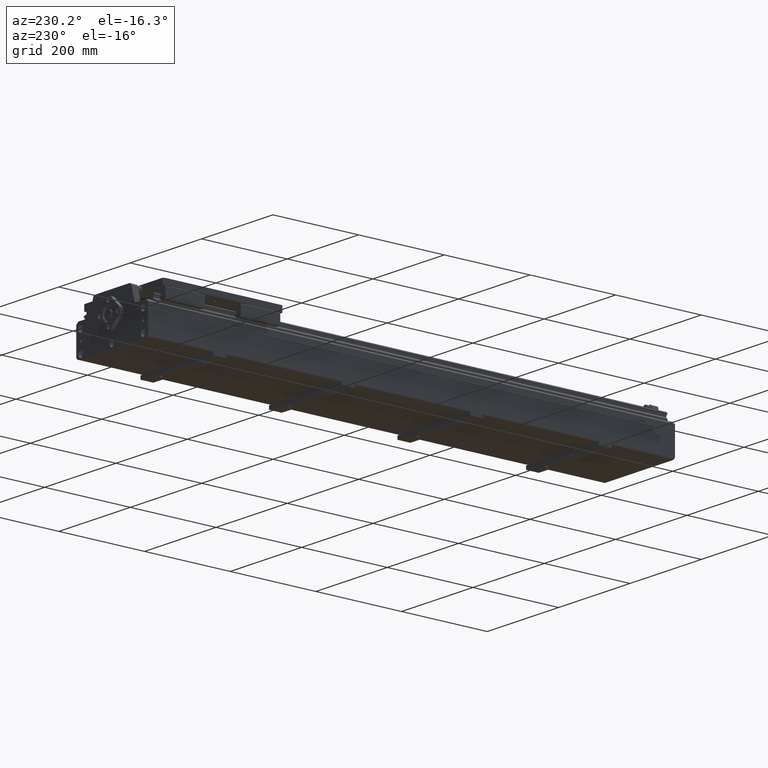
[diagram: clean part render]
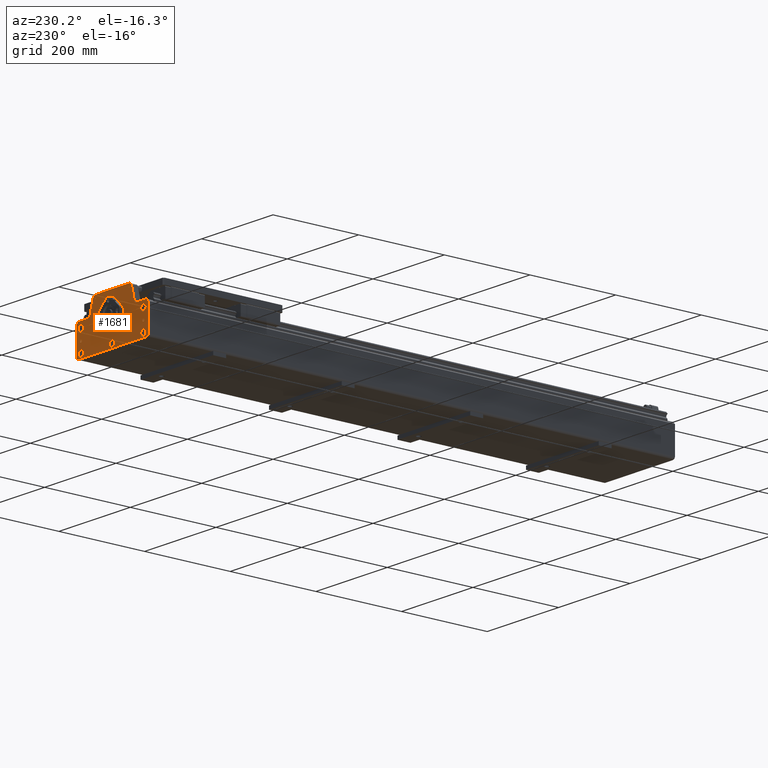
[diagram: same view with one face highlighted and labeled with its STEP entity id]
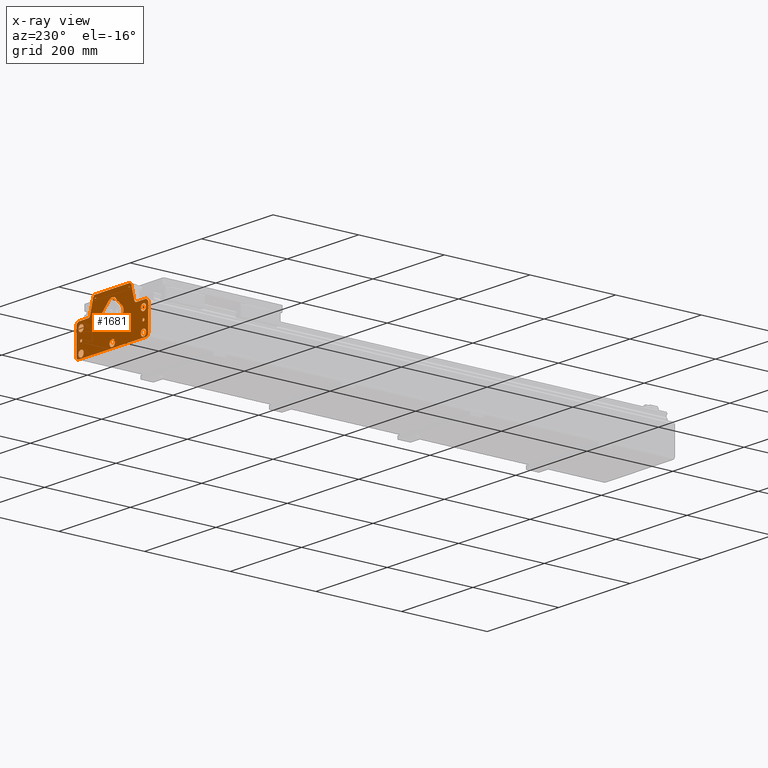
[diagram: x-ray of the same camera — body ghosted, the highlighted face saturated]
A machine part, auxiliary view. The second image highlights one B-rep face of the part: STEP entity #1681.
The next image is the same camera in x-ray: the body ghosted, the highlighted face saturated — about 0% of this face is hidden behind the body in this view.
In plain terms, the highlighted planar face has unit normal (0, 1, 0).
Its self-contained STEP definition (entity closure, byte-faithful):
#780=CARTESIAN_POINT('',(106.052560075463080,1015.0,41.677887302836467));
#781=VERTEX_POINT('',#780);
#789=CARTESIAN_POINT('',(82.177887302836496,1015.0,65.552560075463077));
#790=VERTEX_POINT('',#789);
#791=CARTESIAN_POINT('',(82.177887302836496,1015.0,65.552560075463077));
#792=DIRECTION('',(0.707106781186547,0.0,-0.707106781186548));
#793=VECTOR('',#792,33.763886032268196);
#794=LINE('',#791,#793);
#795=EDGE_CURVE('',#790,#781,#794,.T.);
#839=CARTESIAN_POINT('',(118.947439924536980,1015.0,41.677887302836467));
#840=VERTEX_POINT('',#839);
#848=CARTESIAN_POINT('',(112.500000000000060,1015.0,72.000000000000028));
#849=DIRECTION('',(0.0,-1.0,0.0));
#850=DIRECTION('',(0.0,0.0,1.0));
#851=AXIS2_PLACEMENT_3D('',#848,#849,#850);
#852=CIRCLE('',#851,30.999999999999957);
#853=EDGE_CURVE('',#781,#840,#852,.T.);
#939=CARTESIAN_POINT('',(142.822112697163590,1015.0,65.552560075463035));
#940=VERTEX_POINT('',#939);
#948=CARTESIAN_POINT('',(118.947439924536980,1015.0,41.677887302836467));
#949=DIRECTION('',(0.707106781186548,0.0,0.707106781186547));
#950=VECTOR('',#949,33.763886032268189);
#951=LINE('',#948,#950);
#952=EDGE_CURVE('',#840,#940,#951,.T.);
#975=CARTESIAN_POINT('',(142.822112697163620,1015.0,78.447439924536965));
#976=VERTEX_POINT('',#975);
#984=CARTESIAN_POINT('',(112.500000000000060,1015.0,72.000000000000028));
#985=DIRECTION('',(0.0,-1.0,0.0));
#986=DIRECTION('',(0.0,0.0,1.0));
#987=AXIS2_PLACEMENT_3D('',#984,#985,#986);
#988=CIRCLE('',#987,30.999999999999957);
#989=EDGE_CURVE('',#940,#976,#988,.T.);
#1075=CARTESIAN_POINT('',(118.947439924537040,1015.0,102.322112697163590));
#1076=VERTEX_POINT('',#1075);
#1084=CARTESIAN_POINT('',(142.822112697163620,1015.0,78.447439924536965));
#1085=DIRECTION('',(-0.707106781186547,0.0,0.707106781186548));
#1086=VECTOR('',#1085,33.763886032268211);
#1087=LINE('',#1084,#1086);
#1088=EDGE_CURVE('',#976,#1076,#1087,.T.);
#1111=CARTESIAN_POINT('',(106.052560075463130,1015.0,102.322112697163590));
#1112=VERTEX_POINT('',#1111);
#1120=CARTESIAN_POINT('',(112.500000000000060,1015.0,72.000000000000028));
#1121=DIRECTION('',(0.0,-1.0,0.0));
#1122=DIRECTION('',(0.0,0.0,1.0));
#1123=AXIS2_PLACEMENT_3D('',#1120,#1121,#1122);
#1124=CIRCLE('',#1123,30.999999999999957);
#1125=EDGE_CURVE('',#1076,#1112,#1124,.T.);
#1211=CARTESIAN_POINT('',(82.177887302836510,1015.0,78.447439924537022));
#1212=VERTEX_POINT('',#1211);
#1220=CARTESIAN_POINT('',(106.052560075463130,1015.0,102.322112697163590));
#1221=DIRECTION('',(-0.707106781186548,0.0,-0.707106781186547));
#1222=VECTOR('',#1221,33.763886032268196);
#1223=LINE('',#1220,#1222);
#1224=EDGE_CURVE('',#1112,#1212,#1223,.T.);
#1359=CARTESIAN_POINT('',(112.500000000000060,1015.0,72.000000000000028));
#1360=DIRECTION('',(0.0,-1.0,0.0));
#1361=DIRECTION('',(0.0,0.0,1.0));
#1362=AXIS2_PLACEMENT_3D('',#1359,#1360,#1361);
#1363=CIRCLE('',#1362,30.999999999999957);
#1364=EDGE_CURVE('',#1212,#790,#1363,.T.);
#1431=CARTESIAN_POINT('',(112.500000000000090,1015.0,78.099999999999994));
#1432=DIRECTION('',(0.0,1.0,0.0));
#1433=DIRECTION('',(-1.0,0.0,0.0));
#1434=AXIS2_PLACEMENT_3D('',#1431,#1432,#1433);
#1435=PLANE('',#1434);
#1436=CARTESIAN_POINT('',(213.250000000000110,1015.0,74.0));
#1437=VERTEX_POINT('',#1436);
#1438=CARTESIAN_POINT('',(208.050000000000100,1015.0,79.199999999999989));
#1439=VERTEX_POINT('',#1438);
#1440=CARTESIAN_POINT('',(213.250000000000110,1015.0,74.0));
#1441=DIRECTION('',(-0.707106781186549,0.0,0.707106781186546));
#1442=VECTOR('',#1441,7.353910524340098);
#1443=LINE('',#1440,#1442);
#1444=EDGE_CURVE('',#1437,#1439,#1443,.T.);
#1445=ORIENTED_EDGE('',*,*,#1444,.F.);
#1446=CARTESIAN_POINT('',(213.250000000000110,1015.0,13.999999999999982));
#1447=VERTEX_POINT('',#1446);
#1448=CARTESIAN_POINT('',(213.250000000000110,1015.0,13.999999999999982));
#1449=DIRECTION('',(0.0,0.0,1.0));
#1450=VECTOR('',#1449,60.000000000000014);
#1451=LINE('',#1448,#1450);
#1452=EDGE_CURVE('',#1447,#1437,#1451,.T.);
#1453=ORIENTED_EDGE('',*,*,#1452,.F.);
#1454=CARTESIAN_POINT('',(207.250000000000090,1015.0,7.999999999999977));
#1455=VERTEX_POINT('',#1454);
#1456=CARTESIAN_POINT('',(207.250000000000090,1015.0,13.999999999999979));
#1457=DIRECTION('',(0.0,-1.000000000000000,0.0));
#1458=DIRECTION('',(0.707106781186548,0.0,-0.707106781186547));
#1459=AXIS2_PLACEMENT_3D('',#1456,#1457,#1458);
#1460=CIRCLE('',#1459,6.000000000000002);
#1461=EDGE_CURVE('',#1455,#1447,#1460,.T.);
#1462=ORIENTED_EDGE('',*,*,#1461,.F.);
#1463=CARTESIAN_POINT('',(17.750000000000092,1015.0,8.000000000000036));
#1464=VERTEX_POINT('',#1463);
#1465=CARTESIAN_POINT('',(17.750000000000092,1015.0,8.000000000000036));
#1466=DIRECTION('',(1.0,0.0,0.0));
#1467=VECTOR('',#1466,189.500000000000000);
#1468=LINE('',#1465,#1467);
#1469=EDGE_CURVE('',#1464,#1455,#1468,.T.);
#1470=ORIENTED_EDGE('',*,*,#1469,.F.);
#1471=CARTESIAN_POINT('',(11.750000000000043,1015.0,14.000000000000036));
#1472=VERTEX_POINT('',#1471);
#1473=CARTESIAN_POINT('',(17.750000000000092,1015.0,14.000000000000036));
#1474=DIRECTION('',(0.0,-1.0,0.0));
#1475=DIRECTION('',(-0.707106781186549,0.0,-0.707106781186546));
#1476=AXIS2_PLACEMENT_3D('',#1473,#1474,#1475);
#1477=CIRCLE('',#1476,6.000000000000003);
#1478=EDGE_CURVE('',#1472,#1464,#1477,.T.);
#1479=ORIENTED_EDGE('',*,*,#1478,.F.);
#1480=CARTESIAN_POINT('',(11.750000000000078,1015.0,74.000000000000128));
#1481=VERTEX_POINT('',#1480);
#1482=CARTESIAN_POINT('',(11.750000000000078,1015.0,74.000000000000128));
#1483=DIRECTION('',(0.0,0.0,-1.0));
#1484=VECTOR('',#1483,60.000000000000092);
#1485=LINE('',#1482,#1484);
#1486=EDGE_CURVE('',#1481,#1472,#1485,.T.);
#1487=ORIENTED_EDGE('',*,*,#1486,.F.);
#1488=CARTESIAN_POINT('',(16.950000000000145,1015.0,79.200000000000230));
#1489=VERTEX_POINT('',#1488);
#1490=CARTESIAN_POINT('',(16.950000000000145,1015.0,79.200000000000230));
#1491=DIRECTION('',(-0.707106781186545,0.0,-0.707106781186550));
#1492=VECTOR('',#1491,7.353910524340214);
#1493=LINE('',#1490,#1492);
#1494=EDGE_CURVE('',#1489,#1481,#1493,.T.);
#1495=ORIENTED_EDGE('',*,*,#1494,.F.);
#1496=CARTESIAN_POINT('',(44.731660213367697,1015.0,79.200000000000060));
#1497=VERTEX_POINT('',#1496);
#1498=CARTESIAN_POINT('',(44.731660213367697,1015.0,79.200000000000060));
#1499=DIRECTION('',(-1.0,0.0,0.0));
#1500=VECTOR('',#1499,27.781660213367552);
#1501=LINE('',#1498,#1500);
#1502=EDGE_CURVE('',#1497,#1489,#1501,.T.);
#1503=ORIENTED_EDGE('',*,*,#1502,.F.);
#1504=CARTESIAN_POINT('',(50.527215171102107,1015.0,83.647085729384955));
#1505=VERTEX_POINT('',#1504);
#1506=CARTESIAN_POINT('',(44.731660213367697,1015.0,85.200000000000074));
#1507=DIRECTION('',(0.0,1.000000000000000,0.0));
#1508=DIRECTION('',(0.608761429008720,0.0,-0.793353340291235));
#1509=AXIS2_PLACEMENT_3D('',#1506,#1507,#1508);
#1510=CIRCLE('',#1509,6.000000000000002);
#1511=EDGE_CURVE('',#1505,#1497,#1510,.T.);
#1512=ORIENTED_EDGE('',*,*,#1511,.F.);
#1513=CARTESIAN_POINT('',(58.808406970139458,1015.0,114.552914270615130));
#1514=VERTEX_POINT('',#1513);
#1515=CARTESIAN_POINT('',(50.527215171102107,1015.0,83.647085729384955));
#1516=DIRECTION('',(0.258819045102520,0.0,0.965925826289068));
#1517=VECTOR('',#1516,31.996068124573704);
#1518=LINE('',#1515,#1517);
#1519=EDGE_CURVE('',#1505,#1514,#1518,.T.);
#1520=ORIENTED_EDGE('',*,*,#1519,.T.);
#1521=CARTESIAN_POINT('',(64.603961927873883,1015.0,119.000000000000030));
#1522=VERTEX_POINT('',#1521);
#1523=CARTESIAN_POINT('',(64.603961927873883,1015.0,113.000000000000030));
#1524=DIRECTION('',(0.0,-1.000000000000000,0.0));
#1525=DIRECTION('',(-0.608761429008721,0.0,0.793353340291235));
#1526=AXIS2_PLACEMENT_3D('',#1523,#1524,#1525);
#1527=CIRCLE('',#1526,6.000000000000002);
#1528=EDGE_CURVE('',#1522,#1514,#1527,.T.);
#1529=ORIENTED_EDGE('',*,*,#1528,.F.);
#1530=CARTESIAN_POINT('',(160.396038072126370,1015.0,118.999999999999990));
#1531=VERTEX_POINT('',#1530);
#1532=CARTESIAN_POINT('',(64.603961927873883,1015.0,119.000000000000030));
#1533=DIRECTION('',(1.0,0.0,0.0));
#1534=VECTOR('',#1533,95.792076144252491);
#1535=LINE('',#1532,#1534);
#1536=EDGE_CURVE('',#1522,#1531,#1535,.T.);
#1537=ORIENTED_EDGE('',*,*,#1536,.T.);
#1538=CARTESIAN_POINT('',(166.191593029860770,1015.0,114.552914270615090));
#1539=VERTEX_POINT('',#1538);
#1540=CARTESIAN_POINT('',(160.396038072126370,1015.0,112.999999999999970));
#1541=DIRECTION('',(0.0,-1.000000000000000,0.0));
#1542=DIRECTION('',(0.608761429008720,0.0,0.793353340291236));
#1543=AXIS2_PLACEMENT_3D('',#1540,#1541,#1542);
#1544=CIRCLE('',#1543,6.000000000000002);
#1545=EDGE_CURVE('',#1539,#1531,#1544,.T.);
#1546=ORIENTED_EDGE('',*,*,#1545,.F.);
#1547=CARTESIAN_POINT('',(174.472784828898140,1015.0,83.647085729384827));
#1548=VERTEX_POINT('',#1547);
#1549=CARTESIAN_POINT('',(166.191593029860770,1015.0,114.552914270615090));
#1550=DIRECTION('',(0.258819045102520,0.0,-0.965925826289068));
#1551=VECTOR('',#1550,31.996068124573792);
#1552=LINE('',#1549,#1551);
#1553=EDGE_CURVE('',#1539,#1548,#1552,.T.);
#1554=ORIENTED_EDGE('',*,*,#1553,.T.);
#1555=CARTESIAN_POINT('',(180.268339786632570,1015.0,79.199999999999946));
#1556=VERTEX_POINT('',#1555);
#1557=CARTESIAN_POINT('',(180.268339786632570,1015.0,85.199999999999960));
#1558=DIRECTION('',(0.0,1.000000000000000,0.0));
#1559=DIRECTION('',(-0.608761429008721,0.0,-0.793353340291235));
#1560=AXIS2_PLACEMENT_3D('',#1557,#1558,#1559);
#1561=CIRCLE('',#1560,6.000000000000002);
#1562=EDGE_CURVE('',#1556,#1548,#1561,.T.);
#1563=ORIENTED_EDGE('',*,*,#1562,.F.);
#1564=CARTESIAN_POINT('',(208.050000000000100,1015.0,79.199999999999989));
#1565=DIRECTION('',(-1.0,0.0,0.0));
#1566=VECTOR('',#1565,27.781660213367530);
#1567=LINE('',#1564,#1566);
#1568=EDGE_CURVE('',#1439,#1556,#1567,.T.);
#1569=ORIENTED_EDGE('',*,*,#1568,.F.);
#1570=EDGE_LOOP('',(#1445,#1453,#1462,#1470,#1479,#1487,#1495,#1503,#1512,#1520,#1529,#1537,#1546,#1554,#1563,#1569));
#1571=FACE_OUTER_BOUND('',#1570,.T.);
#1572=ORIENTED_EDGE('',*,*,#795,.T.);
#1573=ORIENTED_EDGE('',*,*,#853,.T.);
#1574=ORIENTED_EDGE('',*,*,#952,.T.);
#1575=ORIENTED_EDGE('',*,*,#989,.T.);
#1576=ORIENTED_EDGE('',*,*,#1088,.T.);
#1577=ORIENTED_EDGE('',*,*,#1125,.T.);
#1578=ORIENTED_EDGE('',*,*,#1224,.T.);
#1579=ORIENTED_EDGE('',*,*,#1364,.T.);
#1580=EDGE_LOOP('',(#1572,#1573,#1574,#1575,#1576,#1577,#1578,#1579));
#1581=FACE_BOUND('',#1580,.T.);
#1582=CARTESIAN_POINT('',(63.770500000000148,1015.0,112.000000000000030));
#1583=VERTEX_POINT('',#1582);
#1584=CARTESIAN_POINT('',(65.000000000000142,1015.0,112.000000000000030));
#1585=DIRECTION('',(0.0,-1.0,0.0));
#1586=DIRECTION('',(-1.0,0.0,0.0));
#1587=AXIS2_PLACEMENT_3D('',#1584,#1585,#1586);
#1588=CIRCLE('',#1587,1.229500000000000);
#1589=EDGE_CURVE('',#1583,#1583,#1588,.T.);
#1590=ORIENTED_EDGE('',*,*,#1589,.T.);
#1591=EDGE_LOOP('',(#1590));
#1592=FACE_BOUND('',#1591,.T.);
#1593=CARTESIAN_POINT('',(158.770500000000110,1015.0,112.000000000000030));
#1594=VERTEX_POINT('',#1593);
#1595=CARTESIAN_POINT('',(160.000000000000110,1015.0,112.000000000000030));
#1596=DIRECTION('',(0.0,-1.0,0.0));
#1597=DIRECTION('',(-1.0,0.0,0.0));
#1598=AXIS2_PLACEMENT_3D('',#1595,#1596,#1597);
#1599=CIRCLE('',#1598,1.229500000000000);
#1600=EDGE_CURVE('',#1594,#1594,#1599,.T.);
#1601=ORIENTED_EDGE('',*,*,#1600,.T.);
#1602=EDGE_LOOP('',(#1601));
#1603=FACE_BOUND('',#1602,.T.);
#1604=CARTESIAN_POINT('',(22.000000000000028,1015.0,41.449999999999996));
#1605=VERTEX_POINT('',#1604);
#1606=CARTESIAN_POINT('',(25.000000000000036,1015.0,41.449999999999996));
#1607=DIRECTION('',(0.0,-1.0,0.0));
#1608=DIRECTION('',(-1.0,0.0,0.0));
#1609=AXIS2_PLACEMENT_3D('',#1606,#1607,#1608);
#1610=CIRCLE('',#1609,3.000000000000000);
#1611=EDGE_CURVE('',#1605,#1605,#1610,.T.);
#1612=ORIENTED_EDGE('',*,*,#1611,.T.);
#1613=EDGE_LOOP('',(#1612));
#1614=FACE_BOUND('',#1613,.T.);
#1615=CARTESIAN_POINT('',(197.000000000000110,1015.0,41.449999999999989));
#1616=VERTEX_POINT('',#1615);
#1617=CARTESIAN_POINT('',(200.000000000000110,1015.0,41.449999999999989));
#1618=DIRECTION('',(0.0,-1.0,0.0));
#1619=DIRECTION('',(-1.0,0.0,0.0));
#1620=AXIS2_PLACEMENT_3D('',#1617,#1618,#1619);
#1621=CIRCLE('',#1620,3.000000000000000);
#1622=EDGE_CURVE('',#1616,#1616,#1621,.T.);
#1623=ORIENTED_EDGE('',*,*,#1622,.T.);
#1624=EDGE_LOOP('',(#1623));
#1625=FACE_BOUND('',#1624,.T.);
#1626=CARTESIAN_POINT('',(17.500000000000036,1015.0,65.199999999999989));
#1627=VERTEX_POINT('',#1626);
#1628=CARTESIAN_POINT('',(25.000000000000036,1015.0,65.199999999999989));
#1629=DIRECTION('',(0.0,-1.0,0.0));
#1630=DIRECTION('',(-1.0,0.0,0.0));
#1631=AXIS2_PLACEMENT_3D('',#1628,#1629,#1630);
#1632=CIRCLE('',#1631,7.500000000000000);
#1633=EDGE_CURVE('',#1627,#1627,#1632,.T.);
#1634=ORIENTED_EDGE('',*,*,#1633,.T.);
#1635=EDGE_LOOP('',(#1634));
#1636=FACE_BOUND('',#1635,.T.);
#1637=CARTESIAN_POINT('',(17.500000000000036,1015.0,17.699999999999999));
#1638=VERTEX_POINT('',#1637);
#1639=CARTESIAN_POINT('',(25.000000000000036,1015.0,17.699999999999999));
#1640=DIRECTION('',(0.0,-1.0,0.0));
#1641=DIRECTION('',(-1.0,0.0,0.0));
#1642=AXIS2_PLACEMENT_3D('',#1639,#1640,#1641);
#1643=CIRCLE('',#1642,7.500000000000000);
#1644=EDGE_CURVE('',#1638,#1638,#1643,.T.);
#1645=ORIENTED_EDGE('',*,*,#1644,.T.);
#1646=EDGE_LOOP('',(#1645));
#1647=FACE_BOUND('',#1646,.T.);
#1648=CARTESIAN_POINT('',(105.000000000000090,1015.0,17.700000000000014));
#1649=VERTEX_POINT('',#1648);
#1650=CARTESIAN_POINT('',(112.500000000000090,1015.0,17.700000000000014));
#1651=DIRECTION('',(0.0,-1.0,0.0));
#1652=DIRECTION('',(-1.0,0.0,0.0));
#1653=AXIS2_PLACEMENT_3D('',#1650,#1651,#1652);
#1654=CIRCLE('',#1653,7.500000000000000);
#1655=EDGE_CURVE('',#1649,#1649,#1654,.T.);
#1656=ORIENTED_EDGE('',*,*,#1655,.T.);
#1657=EDGE_LOOP('',(#1656));
#1658=FACE_BOUND('',#1657,.T.);
#1659=CARTESIAN_POINT('',(192.500000000000110,1015.0,17.699999999999999));
#1660=VERTEX_POINT('',#1659);
#1661=CARTESIAN_POINT('',(200.000000000000110,1015.0,17.699999999999999));
#1662=DIRECTION('',(0.0,-1.0,0.0));
#1663=DIRECTION('',(-1.0,0.0,0.0));
#1664=AXIS2_PLACEMENT_3D('',#1661,#1662,#1663);
#1665=CIRCLE('',#1664,7.500000000000000);
#1666=EDGE_CURVE('',#1660,#1660,#1665,.T.);
#1667=ORIENTED_EDGE('',*,*,#1666,.T.);
#1668=EDGE_LOOP('',(#1667));
#1669=FACE_BOUND('',#1668,.T.);
#1670=CARTESIAN_POINT('',(192.500000000000110,1015.0,65.199999999999989));
#1671=VERTEX_POINT('',#1670);
#1672=CARTESIAN_POINT('',(200.000000000000110,1015.0,65.199999999999989));
#1673=DIRECTION('',(0.0,-1.0,0.0));
#1674=DIRECTION('',(-1.0,0.0,0.0));
#1675=AXIS2_PLACEMENT_3D('',#1672,#1673,#1674);
#1676=CIRCLE('',#1675,7.500000000000000);
#1677=EDGE_CURVE('',#1671,#1671,#1676,.T.);
#1678=ORIENTED_EDGE('',*,*,#1677,.T.);
#1679=EDGE_LOOP('',(#1678));
#1680=FACE_BOUND('',#1679,.T.);
#1681=ADVANCED_FACE('',(#1571,#1581,#1592,#1603,#1614,#1625,#1636,#1647,#1658,#1669,#1680),#1435,.T.);